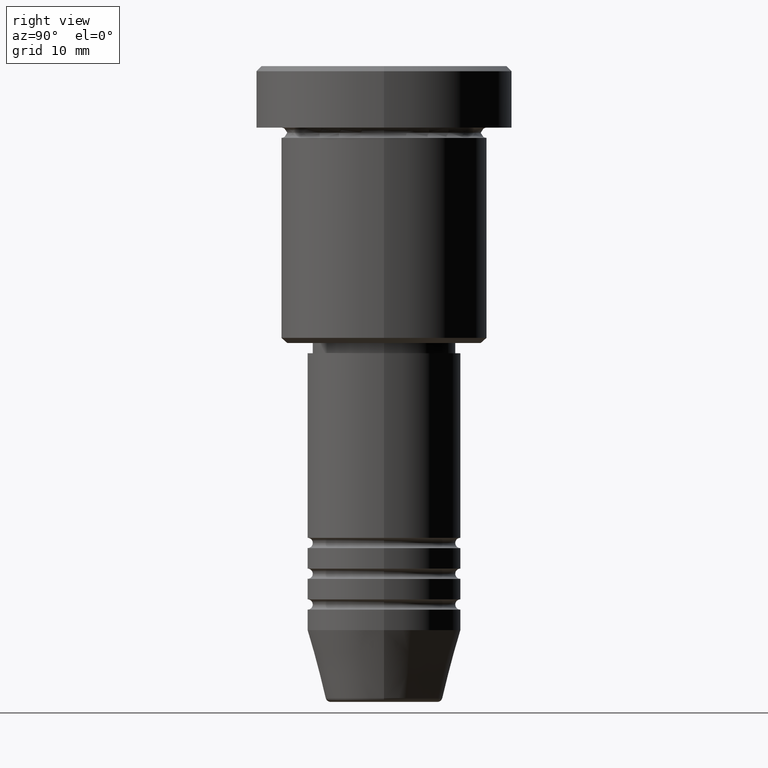
[diagram: clean part render]
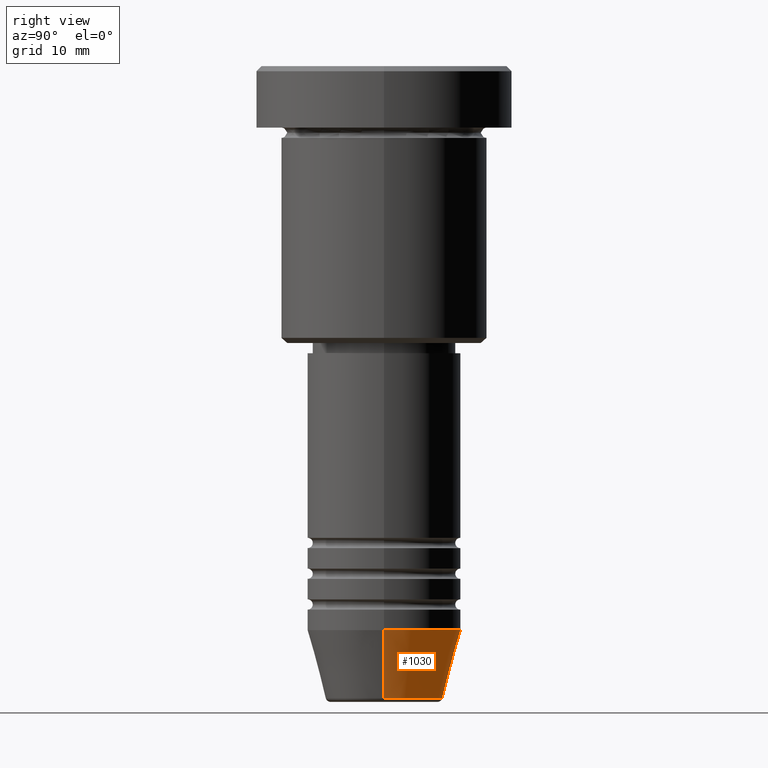
[diagram: same view with one face highlighted and labeled with its STEP entity id]
A machine part, right view. The second image highlights one B-rep face of the part: STEP entity #1030.
In plain terms, the highlighted conical surface has half-angle 15 deg.
Its self-contained STEP definition (entity closure, byte-faithful):
#8 = EDGE_CURVE ( 'NONE', #1008, #696, #174, .T. ) ;
#143 = ORIENTED_EDGE ( 'NONE', *, *, #863, .T. ) ;
#149 = EDGE_LOOP ( 'NONE', ( #143, #458, #589, #518 ) ) ;
#171 = CARTESIAN_POINT ( 'NONE',  ( 5.723655072137192157, 0.000000000000000000, -61.62940952255125637 ) ) ;
#174 = CIRCLE ( 'NONE', #955, 7.500000000000000000 ) ;
#189 = LINE ( 'NONE', #535, #975 ) ;
#210 = LINE ( 'NONE', #473, #1096 ) ;
#218 = DIRECTION ( 'NONE',  ( 1.000000000000000000, 0.000000000000000000, 0.000000000000000000 ) ) ;
#219 = AXIS2_PLACEMENT_3D ( 'NONE', #233, #339, #1162 ) ;
#233 = CARTESIAN_POINT ( 'NONE',  ( 0.000000000000000000, 0.000000000000000000, -55.00000000000000000 ) ) ;
#237 = CARTESIAN_POINT ( 'NONE',  ( 7.500000000000000000, 0.000000000000000000, -55.00000000000000000 ) ) ;
#325 = CARTESIAN_POINT ( 'NONE',  ( -5.723655072137192157, 8.097153428560737887E-16, -61.62940952255125637 ) ) ;
#339 = DIRECTION ( 'NONE',  ( -0.000000000000000000, -0.000000000000000000, 1.000000000000000000 ) ) ;
#377 = DIRECTION ( 'NONE',  ( -0.2588190451025213501, 3.169619151431772337E-17, 0.9659258262890680902 ) ) ;
#458 = ORIENTED_EDGE ( 'NONE', *, *, #743, .T. ) ;
#473 = CARTESIAN_POINT ( 'NONE',  ( 7.500000000000000000, 0.000000000000000000, -55.00000000000000000 ) ) ;
#497 = FACE_OUTER_BOUND ( 'NONE', #149, .T. ) ;
#518 = ORIENTED_EDGE ( 'NONE', *, *, #798, .F. ) ;
#535 = CARTESIAN_POINT ( 'NONE',  ( -7.500000000000000000, 9.184850993605147944E-16, -55.00000000000000000 ) ) ;
#589 = ORIENTED_EDGE ( 'NONE', *, *, #8, .F. ) ;
#652 = CARTESIAN_POINT ( 'NONE',  ( 0.000000000000000000, 0.000000000000000000, -61.62940952255125637 ) ) ;
#696 = VERTEX_POINT ( 'NONE', #903 ) ;
#743 = EDGE_CURVE ( 'NONE', #1049, #696, #189, .T. ) ;
#758 = CONICAL_SURFACE ( 'NONE', #219, 7.500000000000000000, 0.2617993877991500740 ) ;
#763 = DIRECTION ( 'NONE',  ( -0.000000000000000000, -0.000000000000000000, 1.000000000000000000 ) ) ;
#798 = EDGE_CURVE ( 'NONE', #1093, #1008, #210, .T. ) ;
#858 = CIRCLE ( 'NONE', #1019, 5.723655072137192157 ) ;
#863 = EDGE_CURVE ( 'NONE', #1093, #1049, #858, .T. ) ;
#903 = CARTESIAN_POINT ( 'NONE',  ( -7.500000000000000000, 9.184850993605147944E-16, -55.00000000000000000 ) ) ;
#955 = AXIS2_PLACEMENT_3D ( 'NONE', #1143, #763, #1021 ) ;
#975 = VECTOR ( 'NONE', #377, 1000.000000000000000 ) ;
#1008 = VERTEX_POINT ( 'NONE', #237 ) ;
#1019 = AXIS2_PLACEMENT_3D ( 'NONE', #652, #1038, #218 ) ;
#1021 = DIRECTION ( 'NONE',  ( 1.000000000000000000, 0.000000000000000000, 0.000000000000000000 ) ) ;
#1030 = ADVANCED_FACE ( 'NONE', ( #497 ), #758, .T. ) ;
#1038 = DIRECTION ( 'NONE',  ( -0.000000000000000000, -0.000000000000000000, 1.000000000000000000 ) ) ;
#1046 = DIRECTION ( 'NONE',  ( 0.2588190451025213501, 0.000000000000000000, 0.9659258262890680902 ) ) ;
#1049 = VERTEX_POINT ( 'NONE', #325 ) ;
#1093 = VERTEX_POINT ( 'NONE', #171 ) ;
#1096 = VECTOR ( 'NONE', #1046, 1000.000000000000000 ) ;
#1143 = CARTESIAN_POINT ( 'NONE',  ( 0.000000000000000000, 0.000000000000000000, -55.00000000000000000 ) ) ;
#1162 = DIRECTION ( 'NONE',  ( 1.000000000000000000, 0.000000000000000000, 0.000000000000000000 ) ) ;